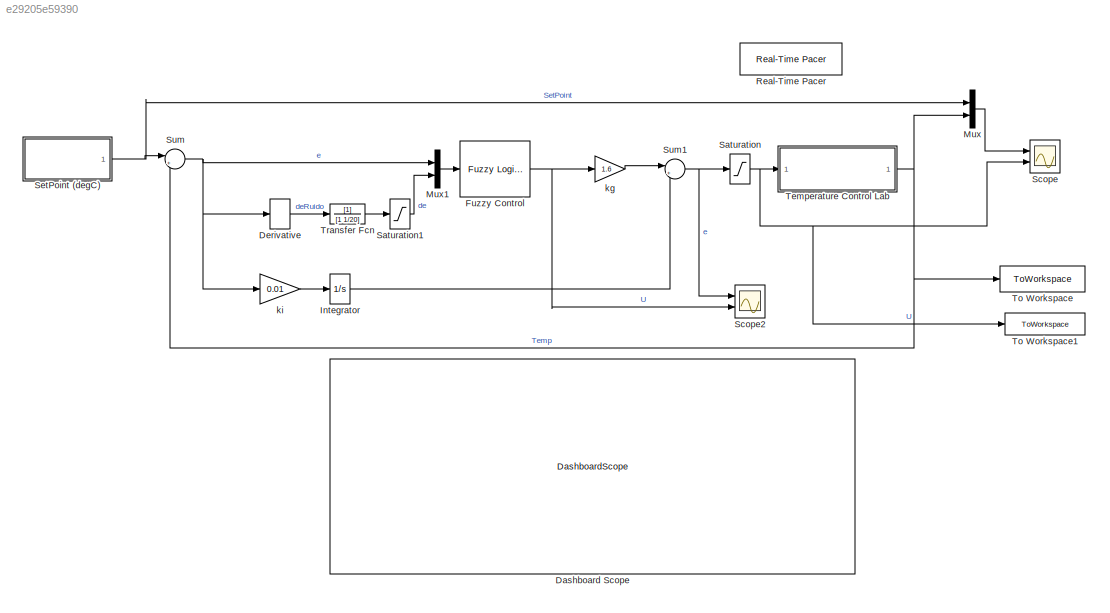
MODEL slx_e29205e59390
KIND model
CONFIG AbsTol = auto
CONFIG EnableMultiTasking = off
CONFIG FixedStep = auto
CONFIG MaxStep = auto
CONFIG MinStep = auto
CONFIG RelTol = 1e-3
CONFIG SampleTimeConstraint = Unconstrained
CONFIG SolverName = VariableStepAuto
CONFIG StartTime = 0.0
CONFIG StopTime = 1200
BLOCK [DashboardScope] Dashboard Scope
  ScaleAtStop = off
  Ymax = 90
  Ymin = 23
BLOCK [Derivative] Derivative
BLOCK [Reference] Fuzzy Control  REF=fuzblock/Fuzzy Logic   (lib defined in mdl_858b3b3e7478)
Controller
  Ports = [1, 1]
  SourceBlock = fuzblock/Fuzzy Logic \nController
  SourceProductBaseCode = FL
  SourceType = Fuzzy Inference System
BLOCK [Integrator] Integrator
  Ports = [1, 1]
BLOCK [Mux] Mux
  DisplayOption = bar
  Inputs = 2
  Ports = [2, 1]
BLOCK [Mux] Mux1
  DisplayOption = bar
  Inputs = 2
  Ports = [2, 1]
BLOCK [Reference] Real-Time Pacer  REF=realtime_pacer_lib/Real-Time Pacer
  Ports = []
  SourceBlock = realtime_pacer_lib/Real-Time Pacer
  SourceType = RealTime_Pacer
BLOCK [Saturate] Saturation
  LowerLimit = 0
  UpperLimit = 100
BLOCK [Saturate] Saturation1
  LowerLimit = -2
  UpperLimit = 2
BLOCK [Scope] Scope
  Floating = off
  NumInputPorts = 2
  Ports = [2]
  ScopeSpecificationString = Simulink.scopes.TimeScopeBlockCfg('CurrentConfiguration', extmgr.ConfigurationSet(extmgr.Configuration('Core','General UI',true),extmgr.Configuration('Core','Source UI',true),extmgr.Configuration('Sources','WiredSimulink',true),extmgr.Configuration('Visuals','Time Domain',true,'SerializedDisplays',{struct('MinYLimReal','14.69465','MaxYLimReal','97.74817','YLabelReal','','MinYLimMag','14.69465','Ma...<+2008ch>
BLOCK [Scope] Scope2
  Floating = off
  NumInputPorts = 2
  Ports = [2]
  ScopeSpecificationString = Simulink.scopes.TimeScopeBlockCfg('CurrentConfiguration', extmgr.ConfigurationSet(extmgr.Configuration('Core','General UI',true),extmgr.Configuration('Core','Source UI',true),extmgr.Configuration('Sources','WiredSimulink',true,'DataLoggingVariableName','ScopeData1'),extmgr.Configuration('Visuals','Time Domain',true,'SerializedDisplays',{struct('MinYLimReal','-18.77722','MaxYLimReal','164.4581','YL...<+2058ch>
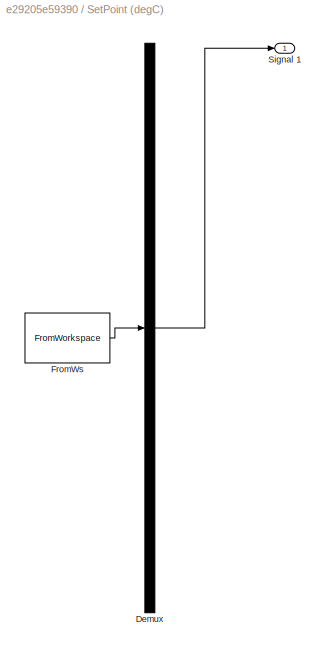
BLOCK [SubSystem] SetPoint (degC)
  ClipboardFcn = sigbuilder_block('clipboard');
  CloseFcn = sigbuilder_block('close');
  ContinueFcn = sigbuilder_block('continue');
  CopyFcn = sigbuilder_block('copy');
  DeleteFcn = sigbuilder_block('delete');
  LoadFcn = sigbuilder_block('load');
  MaskHideContents = on
  ModelCloseFcn = sigbuilder_block('modelClose');
  NameChangeFcn = sigbuilder_block('namechange');
  OpenFcn = sigbuilder_block('open',[53.4 0 1093.2 552.6 ]);
  PauseFcn = sigbuilder_block('pause');
  Ports = [0, 1]
  PreSaveFcn = sigbuilder_block('preSave');
  RequestExecContextInheritance = off
  StartFcn = sigbuilder_block('start');
  StopFcn = sigbuilder_block('stop');
  Tag = STV Subsys
BLOCK [Demux] SetPoint (degC)/Demux
  DisplayOption = none
  Outputs = 1
  Ports = [1, 1]
  Tag = STV Demux
BLOCK [FromWorkspace] SetPoint (degC)/FromWs
  Tag = STV FromWs
  VariableName = tuvar
BLOCK [Outport] SetPoint (degC)/Signal 1
  Tag = STV Outport
BLOCK [Sum] Sum
  Inputs = |+-
  Ports = [2, 1]
BLOCK [Sum] Sum1
  Inputs = |++
  Ports = [2, 1]
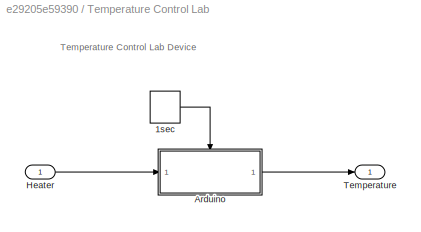
BLOCK [SubSystem] Temperature Control Lab
  Ports = [1, 1]
  RequestExecContextInheritance = off
BLOCK [DiscretePulseGenerator] Temperature Control Lab/1sec
  Period = 1
  Ports = [0, 1]
  PulseType = Time based
  PulseWidth = 50
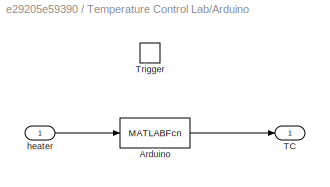
BLOCK [SubSystem] Temperature Control Lab/Arduino
  Ports = [1, 1, 0, 1]
  RequestExecContextInheritance = off
  TreatAsAtomicUnit = on
BLOCK [MATLABFcn] Temperature Control Lab/Arduino/Arduino
  MATLABFcn = ControlLab_Lib
  Ports = [1, 1]
BLOCK [Outport] Temperature Control Lab/Arduino/TC
  InitialOutput = 23
  VectorParamsAs1DForOutWhenUnconnected = off
BLOCK [TriggerPort] Temperature Control Lab/Arduino/Trigger
  Ports = []
  StatesWhenEnabling = held
  VariantControl = Variant
BLOCK [Inport] Temperature Control Lab/Arduino/heater
  LatchByDelayingOutsideSignal = on
BLOCK [Inport] Temperature Control Lab/Heater
BLOCK [Outport] Temperature Control Lab/Temperature
  VectorParamsAs1DForOutWhenUnconnected = off
BLOCK [ToWorkspace] To Workspace
  FixptAsFi = on
  MaxDataPoints = inf
  Ports = [1]
  SampleTime = 1
  Save2DSignal = 2-D array (concatenate along first dimension)
  VariableName = tempPlanta
BLOCK [ToWorkspace] To Workspace1
  FixptAsFi = on
  MaxDataPoints = inf
  Ports = [1]
  SampleTime = 1
  Save2DSignal = 2-D array (concatenate along first dimension)
  VariableName = uPlanta
BLOCK [TransferFcn] Transfer Fcn
  Denominator = [1 1/20]
BLOCK [Gain] kg
  Gain = 1.6
BLOCK [Gain] ki
  Gain = 0.01
ANNOTATION Temperature Control Lab: Temperature Control Lab Device
LINE Derivative:1 -> Transfer Fcn:1
NET Fuzzy Control:1 -> Scope2:2, kg:1
LINE Integrator:1 -> Sum1:2
LINE Mux1:1 -> Fuzzy Control:1
LINE Mux:1 -> Scope:1
LINE Saturation1:1 -> Mux1:2
NET Saturation:1 -> Scope:2, Temperature Control Lab:1, To Workspace1:1
NET SetPoint (degC):1 -> Mux:1, Sum:1
NET Sum1:1 -> Saturation:1, Scope2:1
NET Sum:1 -> Derivative:1, Mux1:1, ki:1
LINE Temperature Control Lab/1sec:1 -> Temperature Control Lab/Arduino:trigger
LINE Temperature Control Lab/Arduino/Arduino:1 -> Temperature Control Lab/Arduino/TC:1
LINE Temperature Control Lab/Arduino/heater:1 -> Temperature Control Lab/Arduino/Arduino:1
LINE Temperature Control Lab/Arduino:1 -> Temperature Control Lab/Temperature:1
LINE Temperature Control Lab/Heater:1 -> Temperature Control Lab/Arduino:1
NET Temperature Control Lab:1 -> Mux:2, Sum:2, To Workspace:1
LINE Transfer Fcn:1 -> Saturation1:1
LINE kg:1 -> Sum1:1
LINE ki:1 -> Integrator:1
note: NET lines group one-source signal fan-out (src -> all destinations, sorted); 1:1 wires keep LINE
